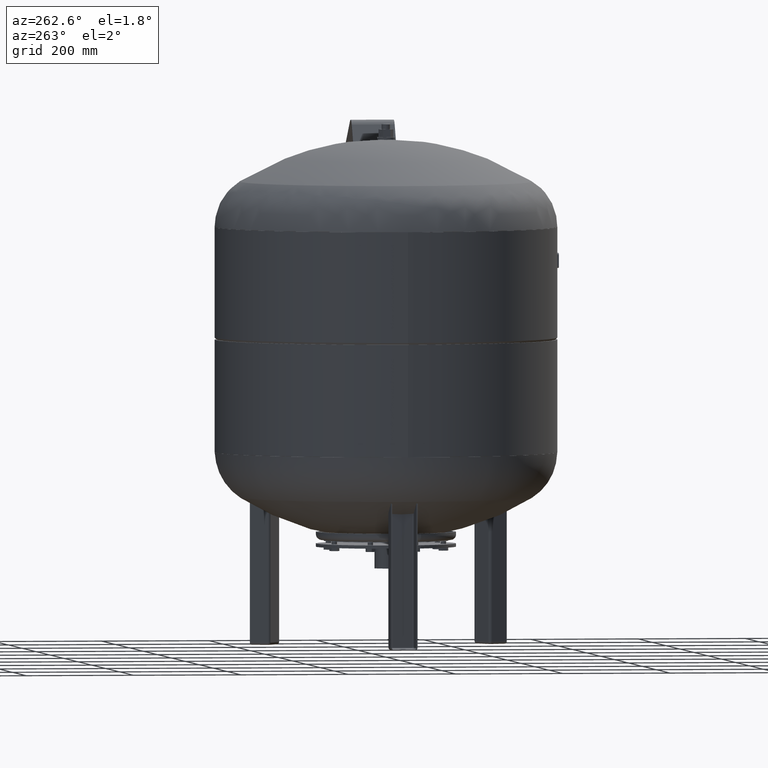
[diagram: clean part render]
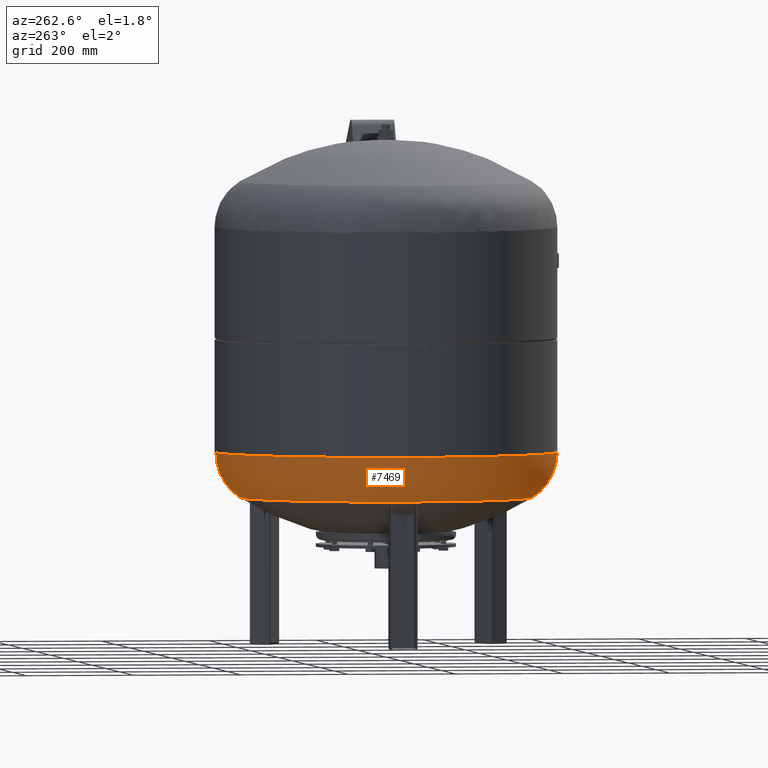
[diagram: same view with one face highlighted and labeled with its STEP entity id]
A machine part, auxiliary view. The second image highlights one B-rep face of the part: STEP entity #7469.
In plain terms, the highlighted toroidal blend (fillet) surface has major radius 218 mm and minor (blend) radius 99 mm.
Its self-contained STEP definition (entity closure, byte-faithful):
#7374=CARTESIAN_POINT('',(-317.000000000000060,-2.971473E-014,358.759449372628580));
#7375=VERTEX_POINT('',#7374);
#7399=CARTESIAN_POINT('',(-3.882002E-014,317.0,358.759449372628690));
#7400=VERTEX_POINT('',#7399);
#7408=CARTESIAN_POINT('',(-1.556097E-014,-2.971473E-014,358.759449372628640));
#7409=DIRECTION('',(0.0,0.0,1.0));
#7410=DIRECTION('',(-1.0,0.0,0.0));
#7411=AXIS2_PLACEMENT_3D('',#7408,#7409,#7410);
#7412=CIRCLE('',#7411,317.000000000000060);
#7413=EDGE_CURVE('',#7400,#7375,#7412,.T.);
#7418=CARTESIAN_POINT('',(0.0,-2.971473E-014,358.759449372628640));
#7419=DIRECTION('',(-9.619823E-017,-1.836970E-016,1.0));
#7420=DIRECTION('',(0.0,-1.0,0.0));
#7421=AXIS2_PLACEMENT_3D('',#7418,#7419,#7420);
#7422=TOROIDAL_SURFACE('',#7421,218.0,99.0);
#7423=CARTESIAN_POINT('',(-3.021869E-030,-317.000000000000110,358.759449372628580));
#7424=VERTEX_POINT('',#7423);
#7425=CARTESIAN_POINT('',(8.065826E-015,-270.639024390243830,274.913560318702370));
#7426=VERTEX_POINT('',#7425);
#7427=CARTESIAN_POINT('',(0.0,-218.000000000000030,358.759449372628580));
#7428=DIRECTION('',(1.0,0.0,0.0));
#7429=DIRECTION('',(0.0,-1.0,0.0));
#7430=AXIS2_PLACEMENT_3D('',#7427,#7428,#7429);
#7431=CIRCLE('',#7430,99.0);
#7432=EDGE_CURVE('',#7424,#7426,#7431,.T.);
#7433=ORIENTED_EDGE('',*,*,#7432,.F.);
#7434=CARTESIAN_POINT('',(-1.556097E-014,-2.971473E-014,358.759449372628640));
#7435=DIRECTION('',(0.0,0.0,1.0));
#7436=DIRECTION('',(-1.0,0.0,0.0));
#7437=AXIS2_PLACEMENT_3D('',#7434,#7435,#7436);
#7438=CIRCLE('',#7437,317.000000000000060);
#7439=EDGE_CURVE('',#7375,#7424,#7438,.T.);
#7440=ORIENTED_EDGE('',*,*,#7439,.F.);
#7441=ORIENTED_EDGE('',*,*,#7413,.F.);
#7442=CARTESIAN_POINT('',(-2.507680E-014,270.639024390243830,274.913560318702480));
#7443=VERTEX_POINT('',#7442);
#7444=CARTESIAN_POINT('',(-2.669642E-014,217.999999999999970,358.759449372628690));
#7445=DIRECTION('',(-1.0,0.0,0.0));
#7446=DIRECTION('',(0.0,1.0,0.0));
#7447=AXIS2_PLACEMENT_3D('',#7444,#7445,#7446);
#7448=CIRCLE('',#7447,99.0);
#7449=EDGE_CURVE('',#7400,#7443,#7448,.T.);
#7450=ORIENTED_EDGE('',*,*,#7449,.T.);
#7451=CARTESIAN_POINT('',(-270.639024390243830,-1.431249E-014,274.913560318702420));
#7452=VERTEX_POINT('',#7451);
#7453=CARTESIAN_POINT('',(-7.495146E-015,-1.431249E-014,274.913560318702420));
#7454=DIRECTION('',(0.0,0.0,1.0));
#7455=DIRECTION('',(-1.0,0.0,0.0));
#7456=AXIS2_PLACEMENT_3D('',#7453,#7454,#7455);
#7457=CIRCLE('',#7456,270.639024390243830);
#7458=EDGE_CURVE('',#7443,#7452,#7457,.T.);
#7459=ORIENTED_EDGE('',*,*,#7458,.T.);
#7460=CARTESIAN_POINT('',(-7.495146E-015,-1.431249E-014,274.913560318702420));
#7461=DIRECTION('',(0.0,0.0,1.0));
#7462=DIRECTION('',(-1.0,0.0,0.0));
#7463=AXIS2_PLACEMENT_3D('',#7460,#7461,#7462);
#7464=CIRCLE('',#7463,270.639024390243830);
#7465=EDGE_CURVE('',#7452,#7426,#7464,.T.);
#7466=ORIENTED_EDGE('',*,*,#7465,.T.);
#7467=EDGE_LOOP('',(#7433,#7440,#7441,#7450,#7459,#7466));
#7468=FACE_OUTER_BOUND('',#7467,.T.);
#7469=ADVANCED_FACE('',(#7468),#7422,.T.);